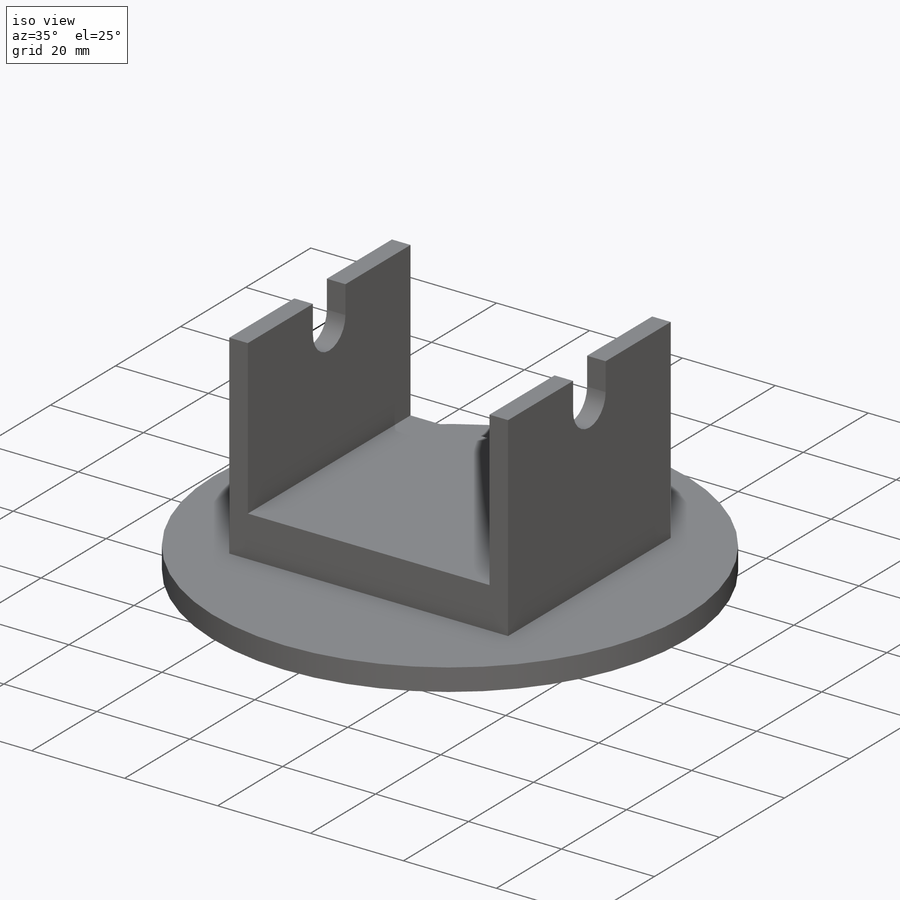
[diagram: iso view]
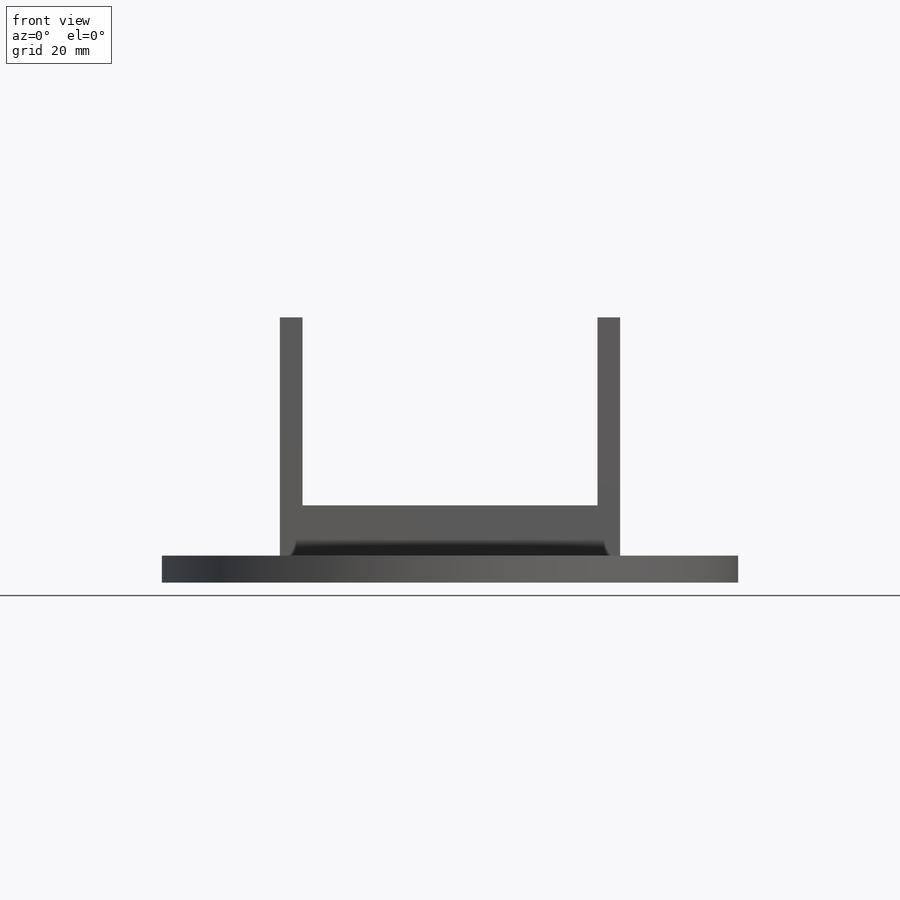
[diagram: front view]
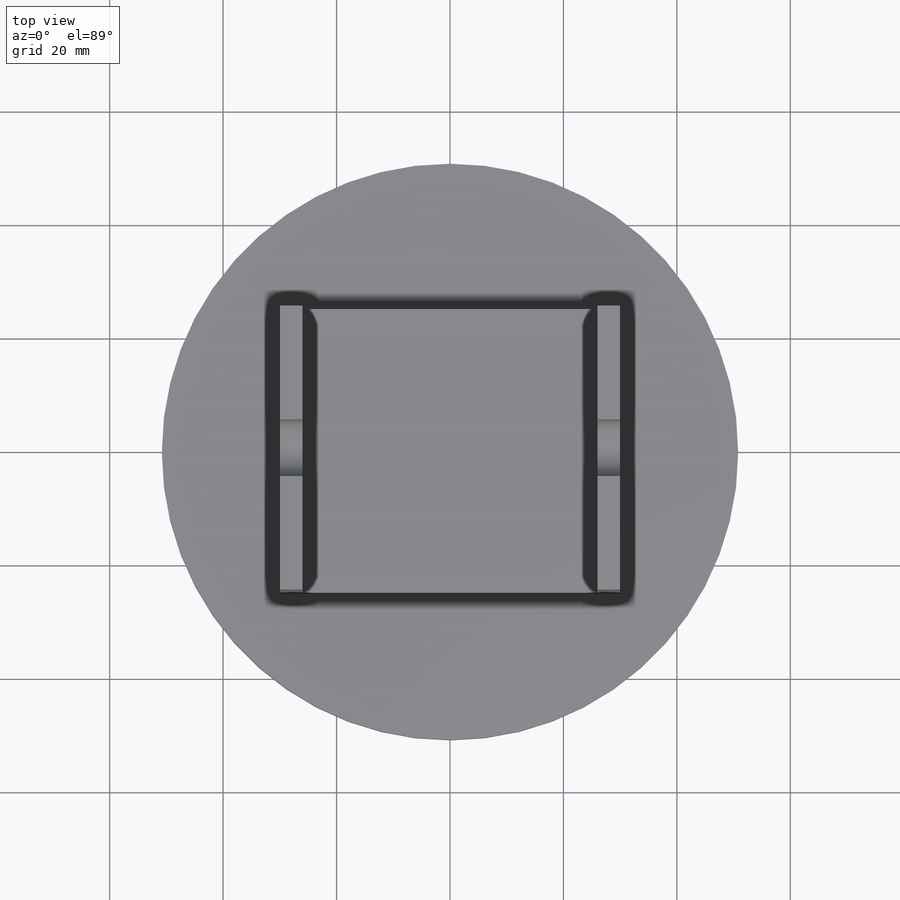
[diagram: top view]
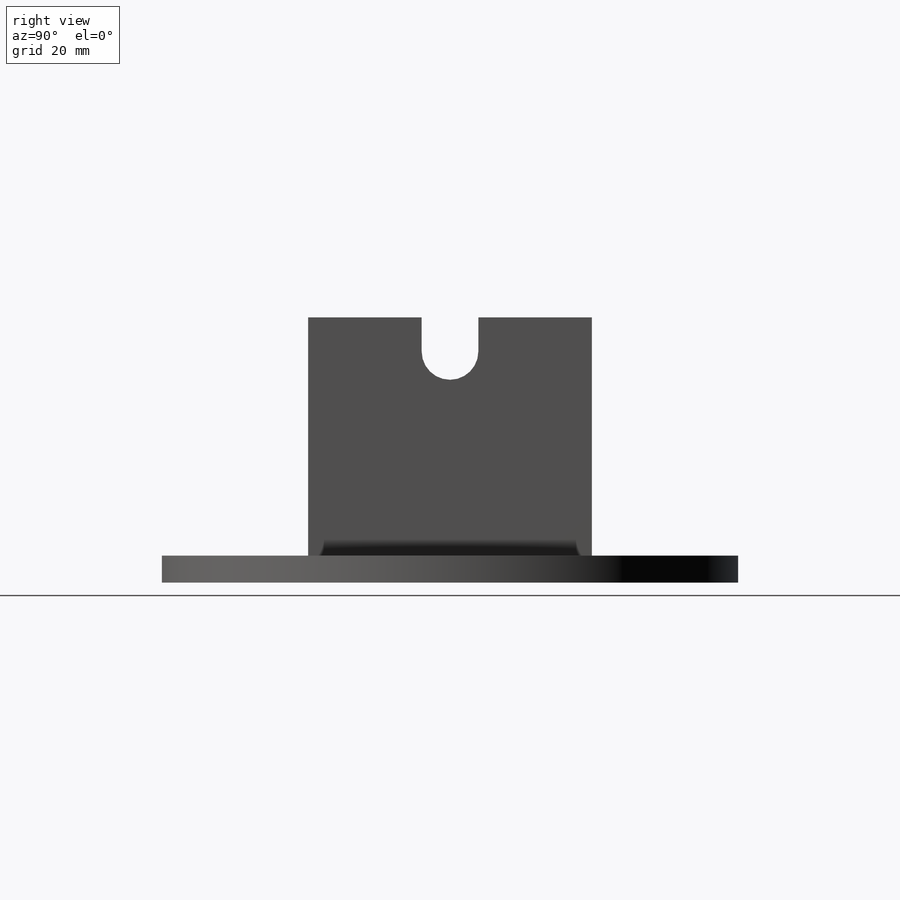
[diagram: right view]
SOLIDWORKS PART (.sldprt)
format: sldprt  version: not decoded by parser v0  size: 213,504 bytes
history: native  units: mm
features: sketch x5, extrude x3, cut_extrude x2, material x1, plane x1 (+11 scaffold rows collapsed)
feature tree (23):
  scaffold x11  (default folders/planes/origin — collapsed)
  material  "Material <not specified>"
  plane  "Plane1"  Offset=0mm
  sketch  "Sketch2"  dims[D1=101.6mm]
  extrude  "Boss-Extrude1"  Depth=4.7625mm
  sketch  "Sketch4"  dims[D1=50.0mm D2=32.0mm D3=42.0mm D4=42.0mm]
  extrude  "Boss-Extrude2"  Depth=60mm
  sketch  "Sketch7"
  extrude  "Boss-Extrude3"  [1 undecoded]
  sketch  "Sketch6"  dims[D1=10.0mm D2=36.0mm]
  cut_extrude  "Cut-Extrude2"  [1 undecoded]
  sketch  "Sketch5"  dims[c1.D1=4.0mm c1.D2=8.8463mm c1.D3=52.0mm c2.D1=33.1537mm c2.D2=52.0mm c2.D3=~61.669829mm c3.D3=~32.520409deg c4.D3=8.8463mm]
  cut_extrude  "Cut-Extrude1"  [1 undecoded]
decode coverage: 6 of 10 modeling features carry decoded parameters
note: ~ marks probable driven/reference dimensions
note: 3 parameter values undecoded
summary: no parameter record found for 3 features
note: suppression state not decoded; provenance and decode notes live in map.json
